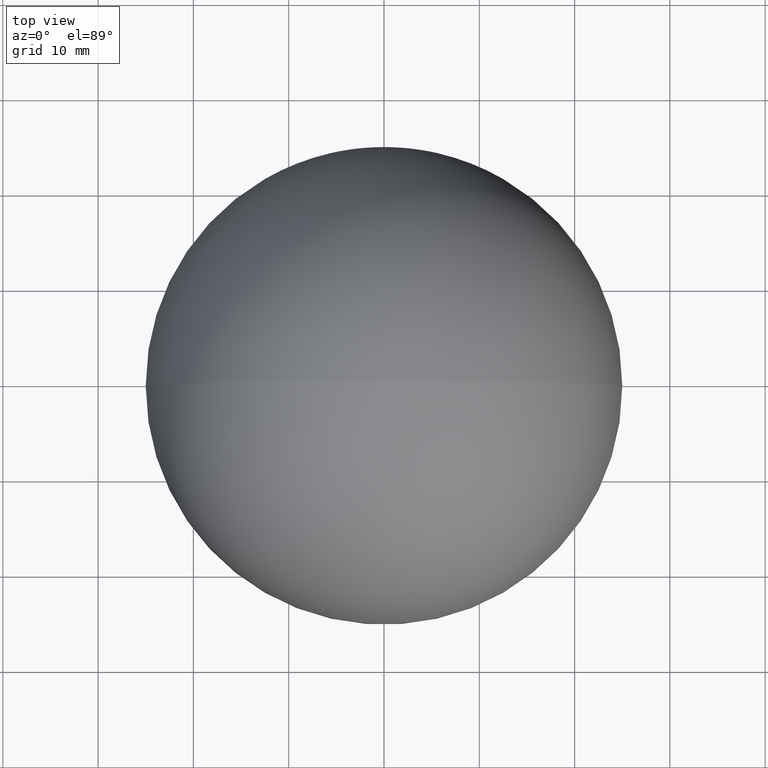
[diagram: clean part render]
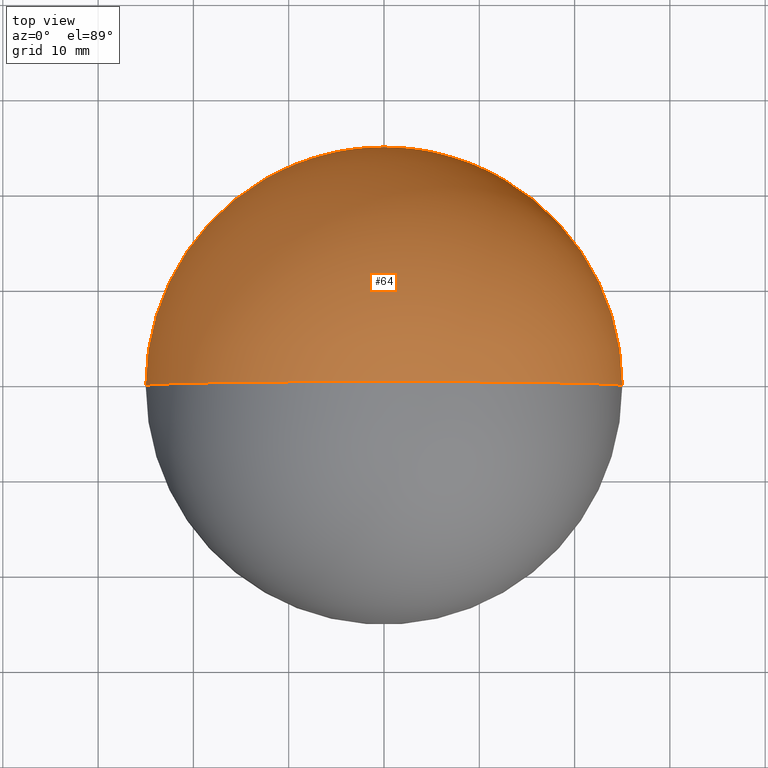
[diagram: same view with one face highlighted and labeled with its STEP entity id]
A machine part, top view. The second image highlights one B-rep face of the part: STEP entity #64.
In plain terms, the highlighted spherical surface has radius 25.1331 mm.
Its self-contained STEP definition (entity closure, byte-faithful):
#31 = EDGE_CURVE ( 'NONE', #149, #87, #101, .T. ) ;
#35 = DIRECTION ( 'NONE',  ( 1.000000000000000000, -1.224646799147353454E-16, 0.000000000000000000 ) ) ;
#36 = CARTESIAN_POINT ( 'NONE',  ( 25.00000000000000000, 3.061616997868383043E-15, 7.299999999999999822 ) ) ;
#39 = VERTEX_POINT ( 'NONE', #111 ) ;
#42 = DIRECTION ( 'NONE',  ( 1.000000000000000000, 0.000000000000000000, 0.000000000000000000 ) ) ;
#52 = DIRECTION ( 'NONE',  ( 0.000000000000000000, 0.000000000000000000, 1.000000000000000000 ) ) ;
#64 = ADVANCED_FACE ( 'NONE', ( #201 ), #182, .T. ) ;
#68 = ORIENTED_EDGE ( 'NONE', *, *, #202, .T. ) ;
#71 = CARTESIAN_POINT ( 'NONE',  ( 0.000000000000000000, 0.000000000000000000, 7.299999999999999822 ) ) ;
#76 = CIRCLE ( 'NONE', #136, 25.13309312638581261 ) ;
#79 = CARTESIAN_POINT ( 'NONE',  ( 0.000000000000000000, 0.000000000000000000, 4.716906873614187923 ) ) ;
#80 = AXIS2_PLACEMENT_3D ( 'NONE', #79, #152, #35 ) ;
#87 = VERTEX_POINT ( 'NONE', #115 ) ;
#93 = ORIENTED_EDGE ( 'NONE', *, *, #139, .F. ) ;
#98 = CIRCLE ( 'NONE', #80, 25.13309312638581261 ) ;
#101 = CIRCLE ( 'NONE', #116, 25.00000000000000000 ) ;
#111 = CARTESIAN_POINT ( 'NONE',  ( -1.538958102495036695E-15, 0.000000000000000000, 29.85000000000000142 ) ) ;
#115 = CARTESIAN_POINT ( 'NONE',  ( -25.00000000000000000, 0.000000000000000000, 7.299999999999999822 ) ) ;
#116 = AXIS2_PLACEMENT_3D ( 'NONE', #71, #126, #42 ) ;
#117 = DIRECTION ( 'NONE',  ( -0.000000000000000000, -1.000000000000000000, 0.000000000000000000 ) ) ;
#126 = DIRECTION ( 'NONE',  ( 0.000000000000000000, 0.000000000000000000, 1.000000000000000000 ) ) ;
#136 = AXIS2_PLACEMENT_3D ( 'NONE', #137, #206, #52 ) ;
#137 = CARTESIAN_POINT ( 'NONE',  ( 0.000000000000000000, 0.000000000000000000, 4.716906873614187923 ) ) ;
#139 = EDGE_CURVE ( 'NONE', #149, #39, #98, .T. ) ;
#146 = EDGE_LOOP ( 'NONE', ( #93, #147, #68 ) ) ;
#147 = ORIENTED_EDGE ( 'NONE', *, *, #31, .T. ) ;
#149 = VERTEX_POINT ( 'NONE', #36 ) ;
#152 = DIRECTION ( 'NONE',  ( -1.224646799147353207E-16, -1.000000000000000000, -0.000000000000000000 ) ) ;
#161 = AXIS2_PLACEMENT_3D ( 'NONE', #167, #117, #172 ) ;
#167 = CARTESIAN_POINT ( 'NONE',  ( 0.000000000000000000, 0.000000000000000000, 4.716906873614187923 ) ) ;
#172 = DIRECTION ( 'NONE',  ( -1.000000000000000000, 0.000000000000000000, 0.000000000000000000 ) ) ;
#182 = SPHERICAL_SURFACE ( 'NONE', #161, 25.13309312638581261 ) ;
#201 = FACE_OUTER_BOUND ( 'NONE', #146, .T. ) ;
#202 = EDGE_CURVE ( 'NONE', #87, #39, #76, .T. ) ;
#206 = DIRECTION ( 'NONE',  ( 0.000000000000000000, 1.000000000000000000, 0.000000000000000000 ) ) ;